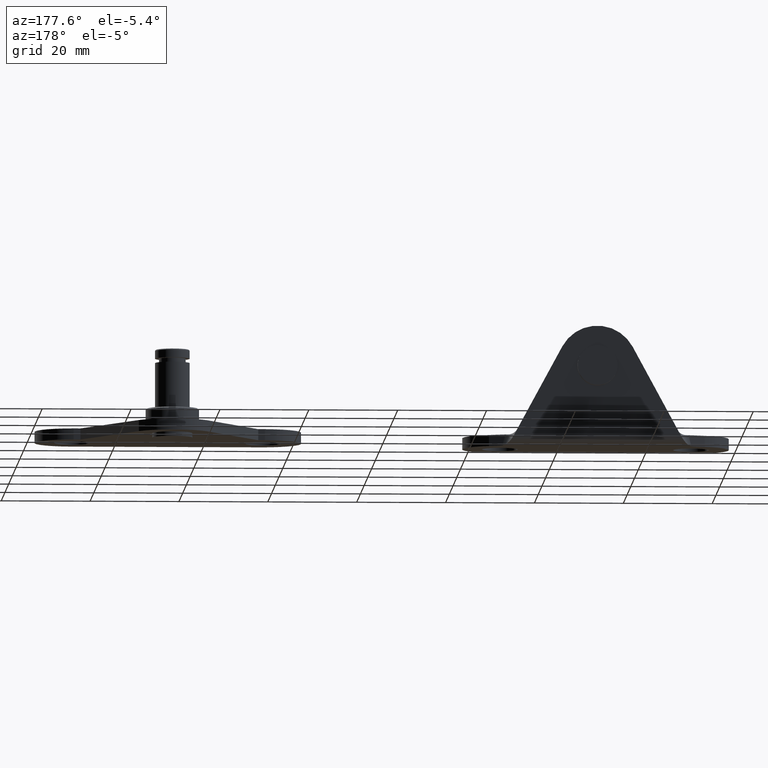
[diagram: clean part render]
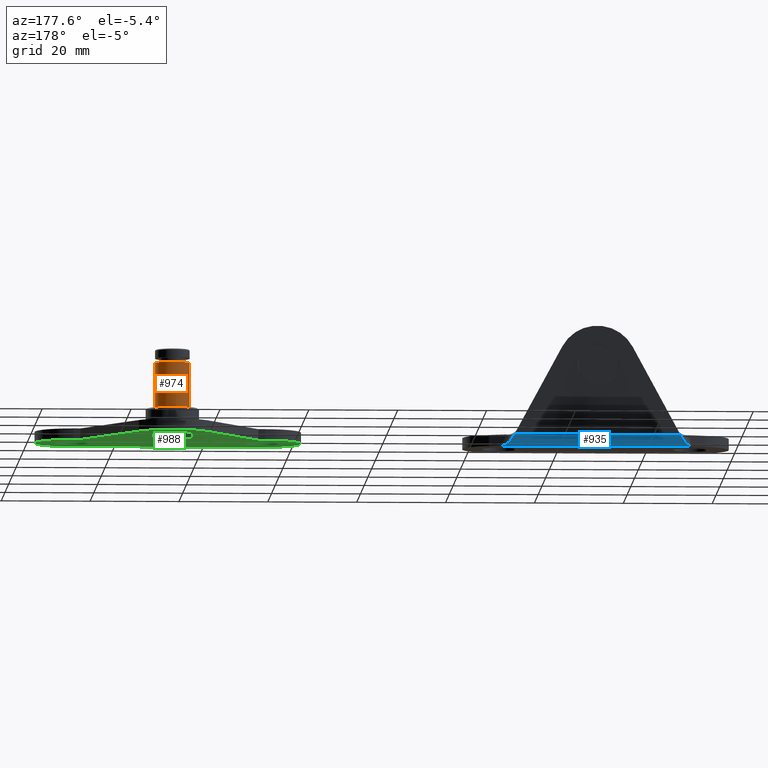
[diagram: same view with three faces highlighted in distinct colors, each labeled with its STEP entity id]
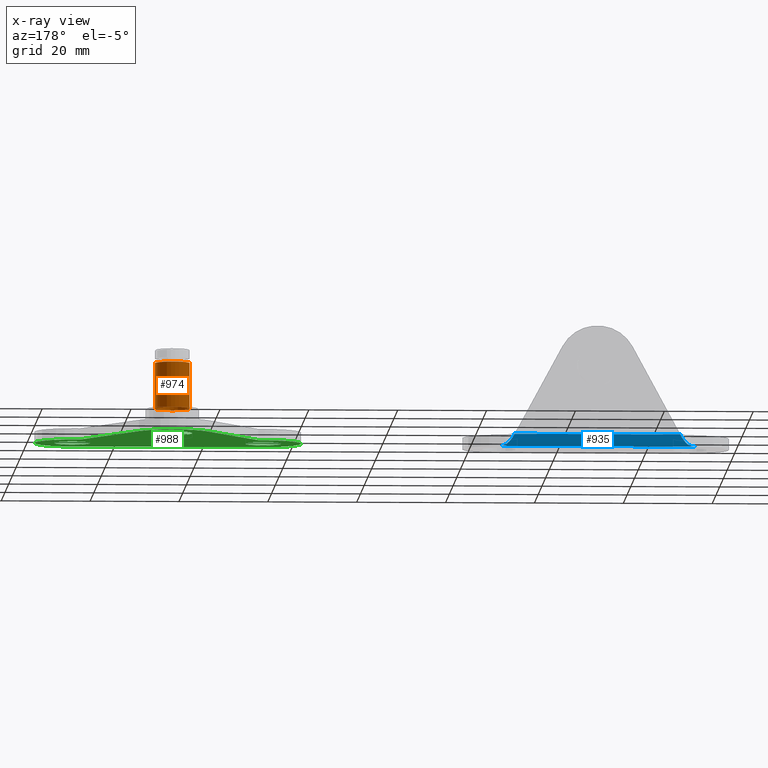
[diagram: x-ray of the same camera — body ghosted, the three highlighted faces saturated]
A machine part, auxiliary view with three faces highlighted in distinct colors.
The next image is the same camera in x-ray (body ghosted, the three faces saturated) — at least one of them is partly hidden behind the body in this view.
Their STEP definitions:

[orange] entity #974 — the highlighted cylindrical surface (bore or boss wall) has radius 3.9 mm, axis along (-0, 0, 1).
#190=CYLINDRICAL_SURFACE('',#1086,3.9);
#223=FACE_BOUND('',#373,.T.);
#282=FACE_OUTER_BOUND('',#372,.T.);
#372=EDGE_LOOP('',(#860));
#373=EDGE_LOOP('',(#861));
#440=CIRCLE('',#1073,3.9);
#446=CIRCLE('',#1085,3.9);
#522=VERTEX_POINT('',#1909);
#528=VERTEX_POINT('',#1927);
#638=EDGE_CURVE('',#522,#522,#440,.T.);
#644=EDGE_CURVE('',#528,#528,#446,.T.);
#860=ORIENTED_EDGE('',*,*,#638,.F.);
#861=ORIENTED_EDGE('',*,*,#644,.T.);
#974=ADVANCED_FACE('',(#282,#223),#190,.T.);
#1073=AXIS2_PLACEMENT_3D('',#1910,#1308,#1309);
#1085=AXIS2_PLACEMENT_3D('',#1928,#1332,#1333);
#1086=AXIS2_PLACEMENT_3D('',#1929,#1334,#1335);
#1308=DIRECTION('center_axis',(0.,0.,-1.));
#1309=DIRECTION('ref_axis',(-1.,0.,0.));
#1332=DIRECTION('center_axis',(0.,0.,-1.));
#1333=DIRECTION('ref_axis',(-1.,0.,0.));
#1334=DIRECTION('center_axis',(0.,0.,1.));
#1335=DIRECTION('ref_axis',(-1.,0.,0.));
#1909=CARTESIAN_POINT('',(33.9,24.5,5.5));
#1910=CARTESIAN_POINT('Origin',(30.,24.5,5.5));
#1927=CARTESIAN_POINT('',(26.1,24.5,15.8));
#1928=CARTESIAN_POINT('Origin',(30.,24.5,15.8));
#1929=CARTESIAN_POINT('Origin',(30.,24.5,5.5));

[blue] entity #935 — the highlighted cylindrical surface (edge-blend (fillet) strip) has radius 2.5 mm, axis along (1, 0, 0).
#35=ELLIPSE('',#1015,7.70833333333328,2.5);
#36=ELLIPSE('',#1016,7.70833333333334,2.5);
#41=LINE('',#1477,#87);
#42=LINE('',#1497,#88);
#87=VECTOR('',#1170,45.8333333333334);
#88=VECTOR('',#1173,37.2884156789281);
#131=B_SPLINE_CURVE_WITH_KNOTS('',3,(#1481,#1482,#1483,#1484,#1485,#1486,
#1487,#1488),.UNSPECIFIED.,.F.,.F.,(4,2,2,4),(-0.290894125869428,-0.20430354259602,
-0.111179990026434,0.),.UNSPECIFIED.);
#132=B_SPLINE_CURVE_WITH_KNOTS('',3,(#1490,#1491,#1492,#1493,#1494,#1495),
 .UNSPECIFIED.,.F.,.F.,(4,2,4),(-0.184337395857366,-0.0752223621322811,
-0.0649571776699093),.UNSPECIFIED.);
#133=B_SPLINE_CURVE_WITH_KNOTS('',3,(#1499,#1500,#1501,#1502,#1503,#1504),
 .UNSPECIFIED.,.F.,.F.,(4,2,4),(-0.0928917243309612,-0.0776555430737484,
0.),.UNSPECIFIED.);
#134=B_SPLINE_CURVE_WITH_KNOTS('',3,(#1505,#1506,#1507,#1508,#1509,#1510,
#1511,#1512),.UNSPECIFIED.,.F.,.F.,(4,2,2,4),(-0.313342331329253,-0.179091674775485,
-0.0953294320213363,-0.00977266725599741),.UNSPECIFIED.);
#175=CYLINDRICAL_SURFACE('',#1014,2.5);
#243=FACE_OUTER_BOUND('',#314,.T.);
#314=EDGE_LOOP('',(#700,#701,#702,#703,#704,#705,#706,#707));
#476=VERTEX_POINT('',#1473);
#477=VERTEX_POINT('',#1474);
#478=VERTEX_POINT('',#1476);
#479=VERTEX_POINT('',#1478);
#480=VERTEX_POINT('',#1480);
#481=VERTEX_POINT('',#1489);
#482=VERTEX_POINT('',#1496);
#483=VERTEX_POINT('',#1498);
#569=EDGE_CURVE('',#476,#477,#35,.T.);
#570=EDGE_CURVE('',#477,#478,#41,.T.);
#571=EDGE_CURVE('',#478,#479,#36,.T.);
#572=EDGE_CURVE('',#479,#480,#131,.T.);
#573=EDGE_CURVE('',#480,#481,#132,.T.);
#574=EDGE_CURVE('',#481,#482,#42,.T.);
#575=EDGE_CURVE('',#482,#483,#133,.T.);
#576=EDGE_CURVE('',#483,#476,#134,.T.);
#700=ORIENTED_EDGE('',*,*,#569,.T.);
#701=ORIENTED_EDGE('',*,*,#570,.T.);
#702=ORIENTED_EDGE('',*,*,#571,.T.);
#703=ORIENTED_EDGE('',*,*,#572,.T.);
#704=ORIENTED_EDGE('',*,*,#573,.T.);
#705=ORIENTED_EDGE('',*,*,#574,.T.);
#706=ORIENTED_EDGE('',*,*,#575,.T.);
#707=ORIENTED_EDGE('',*,*,#576,.T.);
#935=ADVANCED_FACE('',(#243),#175,.T.);
#1014=AXIS2_PLACEMENT_3D('',#1472,#1166,#1167);
#1015=AXIS2_PLACEMENT_3D('',#1475,#1168,#1169);
#1016=AXIS2_PLACEMENT_3D('',#1479,#1171,#1172);
#1166=DIRECTION('center_axis',(1.,1.8396793052573E-16,0.));
#1167=DIRECTION('ref_axis',(0.,0.707106781186547,-0.707106781186547));
#1168=DIRECTION('center_axis',(-0.324324324324327,-0.945945945945945,0.));
#1169=DIRECTION('ref_axis',(-0.945945945945945,0.324324324324327,-3.60072332310864E-17));
#1170=DIRECTION('',(-1.,-1.8396793052573E-16,0.));
#1171=DIRECTION('center_axis',(0.324324324324324,-0.945945945945946,0.));
#1172=DIRECTION('ref_axis',(0.945945945945946,0.324324324324324,-3.60072332310861E-17));
#1173=DIRECTION('',(1.,1.8396793052573E-16,0.));
#1472=CARTESIAN_POINT('Origin',(29.1083441634685,8.5,2.5));
#1473=CARTESIAN_POINT('',(51.2979496087125,9.05498871087513,0.0623807902718337));
#1474=CARTESIAN_POINT('',(52.9166666666667,8.50000000000001,0.));
#1475=CARTESIAN_POINT('Origin',(52.9166666666667,8.50000000000001,2.5));
#1476=CARTESIAN_POINT('',(7.08333333333332,8.5,0.));
#1477=CARTESIAN_POINT('',(29.1083441634685,8.5,0.));
#1478=CARTESIAN_POINT('',(8.84520794866619,9.104071288781,0.0740778986870244));
#1479=CARTESIAN_POINT('Origin',(7.08333333333332,8.5,2.5));
#1480=CARTESIAN_POINT('',(10.6838037086346,10.7593309782174,1.4297553873682));
#1481=CARTESIAN_POINT('Ctrl Pts',(8.8452079440588,9.10407128652776,0.0740779318385573));
#1482=CARTESIAN_POINT('Ctrl Pts',(9.06961303492281,9.2763421490025,0.116974561904349));
#1483=CARTESIAN_POINT('Ctrl Pts',(9.27357738645737,9.46205200103621,0.182777601827149));
#1484=CARTESIAN_POINT('Ctrl Pts',(9.67732487843234,9.85320414189683,0.385535867738721));
#1485=CARTESIAN_POINT('Ctrl Pts',(9.86791740344624,10.0510582237855,0.523597885069984));
#1486=CARTESIAN_POINT('Ctrl Pts',(10.2738157191906,10.4451047630602,0.901605149411317));
#1487=CARTESIAN_POINT('Ctrl Pts',(10.4806227725429,10.6266469958259,1.14965397111994));
#1488=CARTESIAN_POINT('Ctrl Pts',(10.6838037086346,10.7593309782174,1.4297553873682));
#1489=CARTESIAN_POINT('',(11.3557921605359,11.,2.5));
#1490=CARTESIAN_POINT('Ctrl Pts',(10.6838037086346,10.7593309782174,1.42975538736819));
#1491=CARTESIAN_POINT('Ctrl Pts',(10.8299889169074,10.854794834096,1.63128356545114));
#1492=CARTESIAN_POINT('Ctrl Pts',(11.053632414822,10.9769608279769,1.95501496544377));
#1493=CARTESIAN_POINT('Ctrl Pts',(11.3130902870966,10.9990957898744,2.42167980825818));
#1494=CARTESIAN_POINT('Ctrl Pts',(11.3347362937391,11.,2.46117423560603));
#1495=CARTESIAN_POINT('Ctrl Pts',(11.3557921605359,11.,2.5));
#1496=CARTESIAN_POINT('',(48.6442078394641,11.,2.5));
#1497=CARTESIAN_POINT('',(29.1083441634685,11.,2.5));
#1498=CARTESIAN_POINT('',(49.3180700361577,10.7578109322684,1.42655237941983));
#1499=CARTESIAN_POINT('Ctrl Pts',(48.6442078394641,11.,2.5));
#1500=CARTESIAN_POINT('Ctrl Pts',(48.6818846093872,11.,2.43052628009699));
#1501=CARTESIAN_POINT('Ctrl Pts',(48.7214003608254,10.9971067435631,2.35897329681922));
#1502=CARTESIAN_POINT('Ctrl Pts',(48.9760215121432,10.9585671414802,1.91134049619815));
#1503=CARTESIAN_POINT('Ctrl Pts',(49.1759375321838,10.850702413878,1.6219335034466));
#1504=CARTESIAN_POINT('Ctrl Pts',(49.3180700361578,10.7578109322684,1.42655237941975));
#1505=CARTESIAN_POINT('Ctrl Pts',(49.3180700361577,10.7578109322684,1.42655237941985));
#1506=CARTESIAN_POINT('Ctrl Pts',(49.5647891731856,10.5965662799954,1.08740221345721));
#1507=CARTESIAN_POINT('Ctrl Pts',(49.8157732464583,10.3647767811771,0.798346927932965));
#1508=CARTESIAN_POINT('Ctrl Pts',(50.2691764899882,9.92612377332024,0.435040269655075));
#1509=CARTESIAN_POINT('Ctrl Pts',(50.4503417944461,9.74765644102586,0.324645394010117));
#1510=CARTESIAN_POINT('Ctrl Pts',(50.8510978027056,9.3876974838628,0.154261659508199));
#1511=CARTESIAN_POINT('Ctrl Pts',(51.064512305157,9.21277524599545,0.0983050581221753));
#1512=CARTESIAN_POINT('Ctrl Pts',(51.2979496055863,9.05498871176887,0.0623807660323283));

[green] entity #988 — the highlighted planar face has unit normal (-0, 0, 1).
#68=LINE('',#1954,#114);
#70=LINE('',#1960,#116);
#75=LINE('',#1977,#121);
#77=LINE('',#1981,#123);
#80=LINE('',#1987,#126);
#114=VECTOR('',#1361,1.5);
#116=VECTOR('',#1365,1.5);
#121=VECTOR('',#1384,43.);
#123=VECTOR('',#1388,23.9791576165636);
#126=VECTOR('',#1393,23.9791576165636);
#170=PLANE('',#1112);
#230=FACE_BOUND('',#394,.T.);
#231=FACE_BOUND('',#395,.T.);
#232=FACE_BOUND('',#396,.T.);
#296=FACE_OUTER_BOUND('',#393,.T.);
#393=EDGE_LOOP('',(#912,#913,#914,#915,#916,#917,#918,#919));
#394=EDGE_LOOP('',(#920));
#395=EDGE_LOOP('',(#921));
#396=EDGE_LOOP('',(#922));
#448=CIRCLE('',#1089,4.5);
#450=CIRCLE('',#1093,4.);
#452=CIRCLE('',#1096,4.);
#453=CIRCLE('',#1100,8.5);
#455=CIRCLE('',#1103,8.5);
#457=CIRCLE('',#1109,9.);
#530=VERTEX_POINT('',#1933);
#532=VERTEX_POINT('',#1939);
#534=VERTEX_POINT('',#1944);
#535=VERTEX_POINT('',#1947);
#538=VERTEX_POINT('',#1952);
#539=VERTEX_POINT('',#1956);
#541=VERTEX_POINT('',#1959);
#543=VERTEX_POINT('',#1965);
#545=VERTEX_POINT('',#1971);
#547=VERTEX_POINT('',#1980);
#549=VERTEX_POINT('',#1986);
#646=EDGE_CURVE('',#530,#530,#448,.T.);
#648=EDGE_CURVE('',#532,#532,#450,.T.);
#650=EDGE_CURVE('',#534,#534,#452,.T.);
#654=EDGE_CURVE('',#538,#535,#68,.T.);
#656=EDGE_CURVE('',#539,#541,#70,.T.);
#659=EDGE_CURVE('',#541,#543,#453,.T.);
#662=EDGE_CURVE('',#545,#538,#455,.T.);
#665=EDGE_CURVE('',#543,#545,#75,.T.);
#667=EDGE_CURVE('',#547,#539,#77,.T.);
#670=EDGE_CURVE('',#535,#549,#80,.T.);
#673=EDGE_CURVE('',#549,#547,#457,.T.);
#912=ORIENTED_EDGE('',*,*,#673,.F.);
#913=ORIENTED_EDGE('',*,*,#670,.F.);
#914=ORIENTED_EDGE('',*,*,#654,.F.);
#915=ORIENTED_EDGE('',*,*,#662,.F.);
#916=ORIENTED_EDGE('',*,*,#665,.F.);
#917=ORIENTED_EDGE('',*,*,#659,.F.);
#918=ORIENTED_EDGE('',*,*,#656,.F.);
#919=ORIENTED_EDGE('',*,*,#667,.F.);
#920=ORIENTED_EDGE('',*,*,#646,.T.);
#921=ORIENTED_EDGE('',*,*,#648,.T.);
#922=ORIENTED_EDGE('',*,*,#650,.T.);
#988=ADVANCED_FACE('',(#296,#230,#231,#232),#170,.F.);
#1089=AXIS2_PLACEMENT_3D('',#1934,#1340,#1341);
#1093=AXIS2_PLACEMENT_3D('',#1940,#1348,#1349);
#1096=AXIS2_PLACEMENT_3D('',#1945,#1354,#1355);
#1100=AXIS2_PLACEMENT_3D('',#1966,#1370,#1371);
#1103=AXIS2_PLACEMENT_3D('',#1972,#1377,#1378);
#1109=AXIS2_PLACEMENT_3D('',#1992,#1398,#1399);
#1112=AXIS2_PLACEMENT_3D('',#1995,#1404,#1405);
#1340=DIRECTION('center_axis',(0.,0.,1.));
#1341=DIRECTION('ref_axis',(1.,0.,0.));
#1348=DIRECTION('center_axis',(0.,0.,1.));
#1349=DIRECTION('ref_axis',(-1.,0.,0.));
#1354=DIRECTION('center_axis',(0.,0.,1.));
#1355=DIRECTION('ref_axis',(-1.,0.,0.));
#1361=DIRECTION('',(-1.,0.,0.));
#1365=DIRECTION('',(-1.,0.,0.));
#1370=DIRECTION('center_axis',(0.,0.,1.));
#1371=DIRECTION('ref_axis',(0.,1.,0.));
#1377=DIRECTION('center_axis',(0.,0.,1.));
#1378=DIRECTION('ref_axis',(0.,-1.,0.));
#1384=DIRECTION('',(1.,0.,0.));
#1388=DIRECTION('',(-0.511559683431817,-0.859247746745454,0.));
#1393=DIRECTION('',(-0.511559683431817,0.859247746745453,0.));
#1398=DIRECTION('center_axis',(0.,0.,1.));
#1399=DIRECTION('ref_axis',(1.,0.,0.));
#1404=DIRECTION('center_axis',(0.,0.,1.));
#1405=DIRECTION('ref_axis',(1.,0.,0.));
#1933=CARTESIAN_POINT('',(25.5,24.5,0.));
#1934=CARTESIAN_POINT('Origin',(30.,24.5,0.));
#1939=CARTESIAN_POINT('',(55.5,4.89858719658941E-16,0.));
#1940=CARTESIAN_POINT('Origin',(51.5,0.,0.));
#1944=CARTESIAN_POINT('',(12.5,4.89858719658941E-16,0.));
#1945=CARTESIAN_POINT('Origin',(8.5,0.,0.));
#1947=CARTESIAN_POINT('',(50.,8.5,0.));
#1952=CARTESIAN_POINT('',(51.5,8.5,0.));
#1954=CARTESIAN_POINT('',(51.5,8.5,0.));
#1956=CARTESIAN_POINT('',(10.,8.5,0.));
#1959=CARTESIAN_POINT('',(8.5,8.5,0.));
#1960=CARTESIAN_POINT('',(51.5,8.5,0.));
#1965=CARTESIAN_POINT('',(8.5,-8.5,0.));
#1966=CARTESIAN_POINT('Origin',(8.5,0.,0.));
#1971=CARTESIAN_POINT('',(51.5,-8.5,0.));
#1972=CARTESIAN_POINT('Origin',(51.5,0.,0.));
#1977=CARTESIAN_POINT('',(8.5,-8.5,0.));
#1980=CARTESIAN_POINT('',(22.2667702792909,29.1040371508864,0.));
#1981=CARTESIAN_POINT('',(22.2667702792909,29.1040371508864,0.));
#1986=CARTESIAN_POINT('',(37.7332297207091,29.1040371508864,0.));
#1987=CARTESIAN_POINT('',(50.,8.5,0.));
#1992=CARTESIAN_POINT('Origin',(30.,24.5,0.));
#1995=CARTESIAN_POINT('Origin',(30.,24.4999961111197,0.));